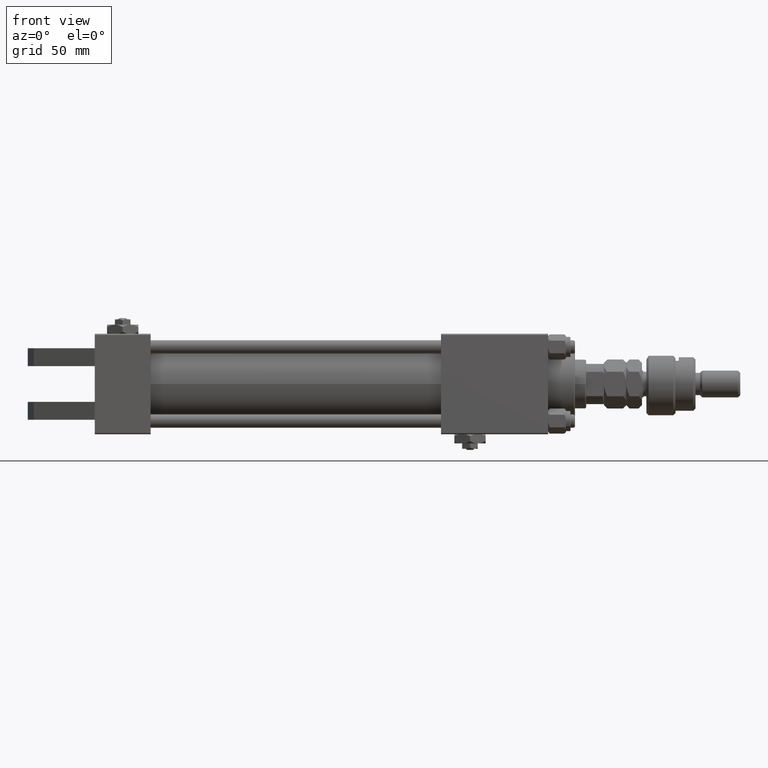
[diagram: clean part render]
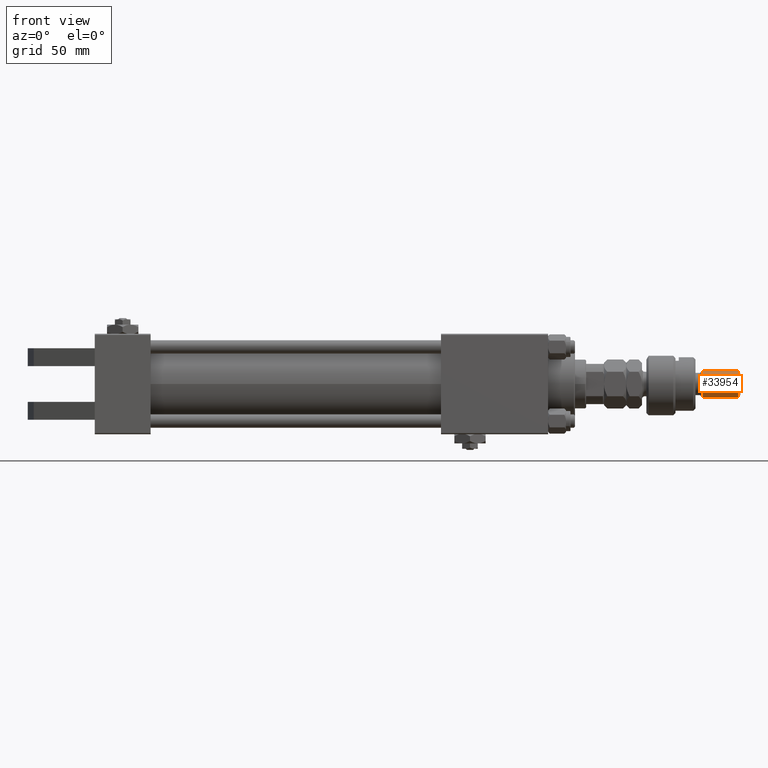
[diagram: same view with one face highlighted and labeled with its STEP entity id]
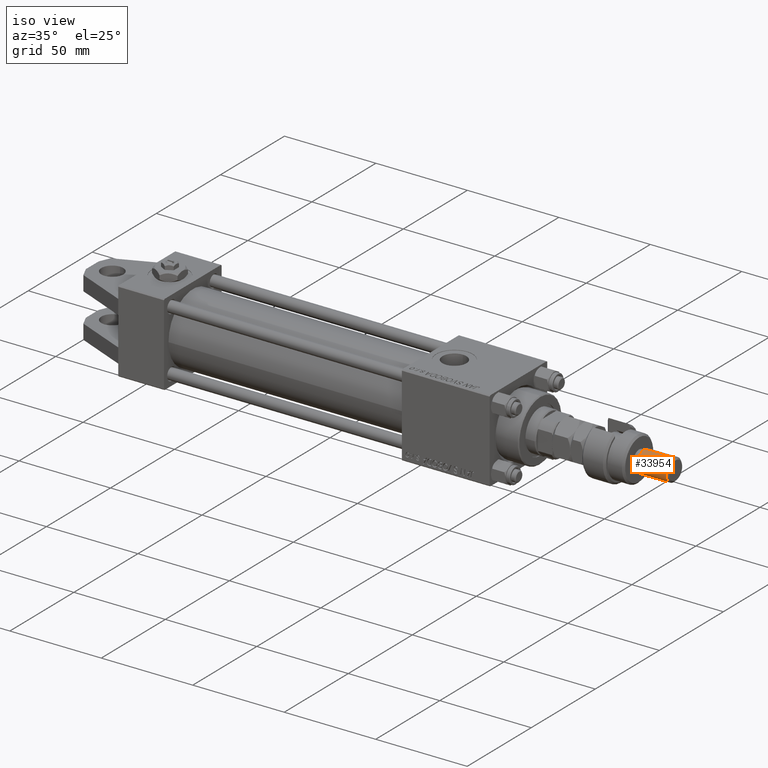
[diagram: same view with one face highlighted and labeled with its STEP entity id]
A machine part, front view. The second image highlights one B-rep face of the part: STEP entity #33954.
A second angle (iso view) of the same face is appended — the face is thin or edge-on in the first view.
In plain terms, the highlighted cylindrical surface (edge-blend (fillet) strip) has radius 6 mm, axis along (-1, -0, 0).
Its self-contained STEP definition (entity closure, byte-faithful):
#184 = DIRECTION ( 'NONE',  ( -0.000000000000000000, -0.000000000000000000, -1.000000000000000000 ) ) ;
#1201 = EDGE_CURVE ( 'NONE', #13174, #52987, #26643, .T. ) ;
#2106 = VECTOR ( 'NONE', #184, 1000.000000000000000 ) ;
#3644 = CARTESIAN_POINT ( 'NONE',  ( -6.000000000000000888, 0.000000000000000000, 41.99999999999999289 ) ) ;
#5558 = VECTOR ( 'NONE', #53545, 1000.000000000000000 ) ;
#7265 = CARTESIAN_POINT ( 'NONE',  ( 6.000000000000000888, 7.347880794884120722E-16, 40.99999999999997868 ) ) ;
#7772 = LINE ( 'NONE', #3644, #5558 ) ;
#10373 = AXIS2_PLACEMENT_3D ( 'NONE', #32134, #14802, #48429 ) ;
#10599 = EDGE_CURVE ( 'NONE', #13174, #41130, #51672, .T. ) ;
#12501 = DIRECTION ( 'NONE',  ( -1.000000000000000000, 0.000000000000000000, 0.000000000000000000 ) ) ;
#12579 = EDGE_LOOP ( 'NONE', ( #12861, #51626, #30808, #24656 ) ) ;
#12716 = EDGE_CURVE ( 'NONE', #27395, #52987, #28862, .T. ) ;
#12861 = ORIENTED_EDGE ( 'NONE', *, *, #1201, .F. ) ;
#13174 = VERTEX_POINT ( 'NONE', #7265 ) ;
#14802 = DIRECTION ( 'NONE',  ( -0.000000000000000000, -0.000000000000000000, 1.000000000000000000 ) ) ;
#15986 = DIRECTION ( 'NONE',  ( 1.000000000000000000, 0.000000000000000000, 0.000000000000000000 ) ) ;
#16172 = CARTESIAN_POINT ( 'NONE',  ( -6.000000000000000888, 0.000000000000000000, 24.99999999999999645 ) ) ;
#21143 = CARTESIAN_POINT ( 'NONE',  ( 6.000000000000000888, 7.347880794884120722E-16, 41.99999999999999289 ) ) ;
#21304 = CYLINDRICAL_SURFACE ( 'NONE', #30434, 6.000000000000000888 ) ;
#22650 = CARTESIAN_POINT ( 'NONE',  ( -6.000000000000000888, 0.000000000000000000, 40.99999999999997868 ) ) ;
#24264 = DIRECTION ( 'NONE',  ( 0.000000000000000000, 0.000000000000000000, -1.000000000000000000 ) ) ;
#24656 = ORIENTED_EDGE ( 'NONE', *, *, #12716, .T. ) ;
#25724 = DIRECTION ( 'NONE',  ( -0.000000000000000000, -0.000000000000000000, -1.000000000000000000 ) ) ;
#26643 = LINE ( 'NONE', #21143, #2106 ) ;
#27395 = VERTEX_POINT ( 'NONE', #16172 ) ;
#27900 = EDGE_CURVE ( 'NONE', #41130, #27395, #7772, .T. ) ;
#28862 = CIRCLE ( 'NONE', #10373, 6.000000000000000888 ) ;
#30434 = AXIS2_PLACEMENT_3D ( 'NONE', #38117, #25724, #12501 ) ;
#30808 = ORIENTED_EDGE ( 'NONE', *, *, #27900, .T. ) ;
#32134 = CARTESIAN_POINT ( 'NONE',  ( 0.000000000000000000, 0.000000000000000000, 24.99999999999999645 ) ) ;
#33954 = ADVANCED_FACE ( 'NONE', ( #37589 ), #21304, .T. ) ;
#37589 = FACE_OUTER_BOUND ( 'NONE', #12579, .T. ) ;
#38117 = CARTESIAN_POINT ( 'NONE',  ( 0.000000000000000000, 0.000000000000000000, 41.99999999999999289 ) ) ;
#41130 = VERTEX_POINT ( 'NONE', #22650 ) ;
#46393 = AXIS2_PLACEMENT_3D ( 'NONE', #54300, #24264, #15986 ) ;
#48353 = CARTESIAN_POINT ( 'NONE',  ( 6.000000000000000888, 7.347880794884120722E-16, 24.99999999999999645 ) ) ;
#48429 = DIRECTION ( 'NONE',  ( 1.000000000000000000, 0.000000000000000000, 0.000000000000000000 ) ) ;
#51626 = ORIENTED_EDGE ( 'NONE', *, *, #10599, .T. ) ;
#51672 = CIRCLE ( 'NONE', #46393, 6.000000000000000888 ) ;
#52987 = VERTEX_POINT ( 'NONE', #48353 ) ;
#53545 = DIRECTION ( 'NONE',  ( -0.000000000000000000, -0.000000000000000000, -1.000000000000000000 ) ) ;
#54300 = CARTESIAN_POINT ( 'NONE',  ( 0.000000000000000000, 0.000000000000000000, 40.99999999999997868 ) ) ;